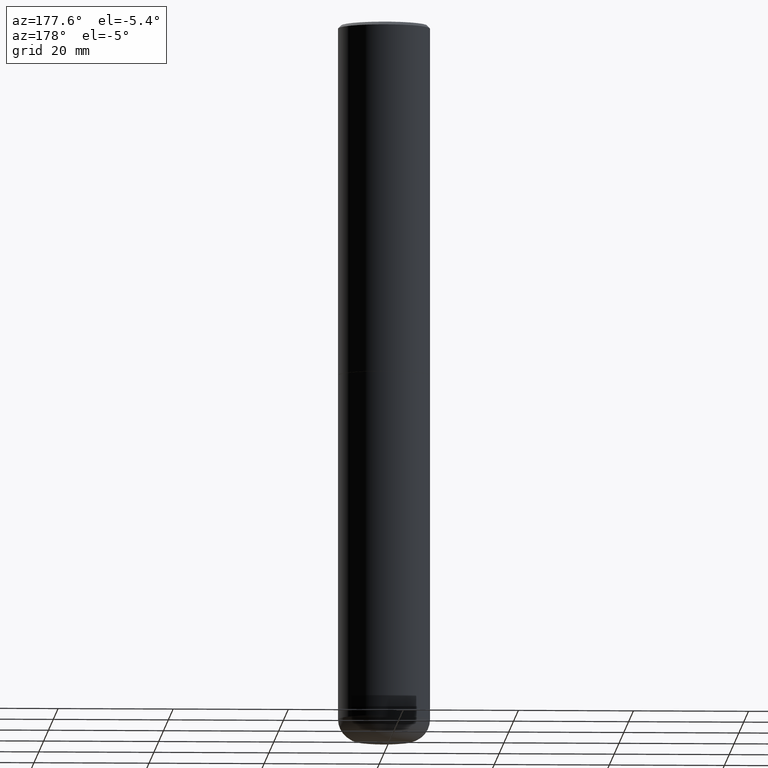
[diagram: clean part render]
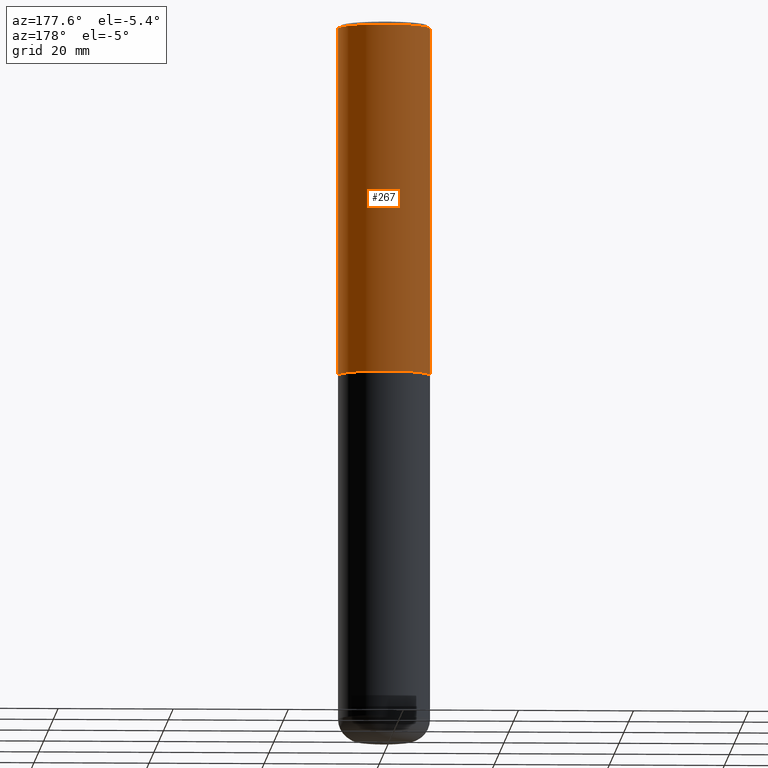
[diagram: same view with one face highlighted and labeled with its STEP entity id]
A machine part, auxiliary view. The second image highlights one B-rep face of the part: STEP entity #267.
In plain terms, the highlighted cylindrical surface (partial cylindrical patch) has radius 7.9997 mm, axis along (-0, 0, 1).
Its self-contained STEP definition (entity closure, byte-faithful):
#8 = EDGE_CURVE ( 'NONE', #292, #60, #270, .T. ) ;
#10 = DIRECTION ( 'NONE',  ( -2.445468806185136877E-29, 3.491481338843145188E-15, 1.000000000000000000 ) ) ;
#11 = CARTESIAN_POINT ( 'NONE',  ( 5.870592416128037625E-29, -8.381650102026854256E-15, -2.400599999999999845 ) ) ;
#14 = FACE_OUTER_BOUND ( 'NONE', #225, .T. ) ;
#24 = ORIENTED_EDGE ( 'NONE', *, *, #8, .T. ) ;
#38 = CIRCLE ( 'NONE', #61, 0.3149500000000000077 ) ;
#42 = VERTEX_POINT ( 'NONE', #109 ) ;
#43 = CIRCLE ( 'NONE', #195, 0.3149500000000002853 ) ;
#59 = CARTESIAN_POINT ( 'NONE',  ( 0.3149500000000002853, -1.058093419736414728E-14, -2.400599999999999845 ) ) ;
#60 = VERTEX_POINT ( 'NONE', #136 ) ;
#61 = AXIS2_PLACEMENT_3D ( 'NONE', #308, #137, #344 ) ;
#73 = DIRECTION ( 'NONE',  ( 1.000000000000000000, -6.982962677686265922E-15, 4.876176775795935232E-29 ) ) ;
#109 = CARTESIAN_POINT ( 'NONE',  ( 0.3149500000000000077, -2.230543471175007450E-15, -0.02000000000000007327 ) ) ;
#110 = DIRECTION ( 'NONE',  ( -2.445468806185136597E-29, 3.491481338843145583E-15, 1.000000000000000000 ) ) ;
#124 = ORIENTED_EDGE ( 'NONE', *, *, #320, .F. ) ;
#136 = CARTESIAN_POINT ( 'NONE',  ( -0.3149500000000000077, 2.129454468560426573E-15, -0.02000000000000007327 ) ) ;
#137 = DIRECTION ( 'NONE',  ( -2.445468806185136597E-29, 3.491481338843145583E-15, 1.000000000000000000 ) ) ;
#145 = CYLINDRICAL_SURFACE ( 'NONE', #375, 0.3149500000000001743 ) ;
#154 = VERTEX_POINT ( 'NONE', #59 ) ;
#170 = VECTOR ( 'NONE', #10, 39.37007874015748143 ) ;
#195 = AXIS2_PLACEMENT_3D ( 'NONE', #11, #110, #238 ) ;
#205 = CARTESIAN_POINT ( 'NONE',  ( 0.000000000000000000, 0.000000000000000000, 0.000000000000000000 ) ) ;
#225 = EDGE_LOOP ( 'NONE', ( #365, #24, #124, #322 ) ) ;
#236 = VECTOR ( 'NONE', #247, 39.37007874015748143 ) ;
#238 = DIRECTION ( 'NONE',  ( 1.000000000000000000, -6.982962677686269866E-15, 0.000000000000000000 ) ) ;
#247 = DIRECTION ( 'NONE',  ( -2.445468806185136877E-29, 3.491481338843145188E-15, 1.000000000000000000 ) ) ;
#267 = ADVANCED_FACE ( 'NONE', ( #14 ), #145, .T. ) ;
#270 = LINE ( 'NONE', #369, #170 ) ;
#279 = EDGE_CURVE ( 'NONE', #154, #292, #43, .T. ) ;
#292 = VERTEX_POINT ( 'NONE', #301 ) ;
#301 = CARTESIAN_POINT ( 'NONE',  ( -0.3149500000000002853, -1.987885518125419637E-15, -2.400599999999999845 ) ) ;
#308 = CARTESIAN_POINT ( 'NONE',  ( 4.890937612370290675E-31, -6.982962677686316261E-17, -0.02000000000000007327 ) ) ;
#310 = LINE ( 'NONE', #406, #236 ) ;
#320 = EDGE_CURVE ( 'NONE', #42, #60, #38, .T. ) ;
#322 = ORIENTED_EDGE ( 'NONE', *, *, #373, .F. ) ;
#333 = DIRECTION ( 'NONE',  ( -2.445468806185136597E-29, 3.491481338843145583E-15, 1.000000000000000000 ) ) ;
#344 = DIRECTION ( 'NONE',  ( 1.000000000000000000, -6.982962677686266711E-15, 0.000000000000000000 ) ) ;
#365 = ORIENTED_EDGE ( 'NONE', *, *, #279, .T. ) ;
#369 = CARTESIAN_POINT ( 'NONE',  ( -0.3149500000000001743, 2.237854346276436774E-15, -1.549218606675783237E-29 ) ) ;
#373 = EDGE_CURVE ( 'NONE', #154, #42, #310, .T. ) ;
#375 = AXIS2_PLACEMENT_3D ( 'NONE', #205, #333, #73 ) ;
#406 = CARTESIAN_POINT ( 'NONE',  ( 0.3149500000000001743, -2.199284095337290660E-15, 1.535751875536930690E-29 ) ) ;